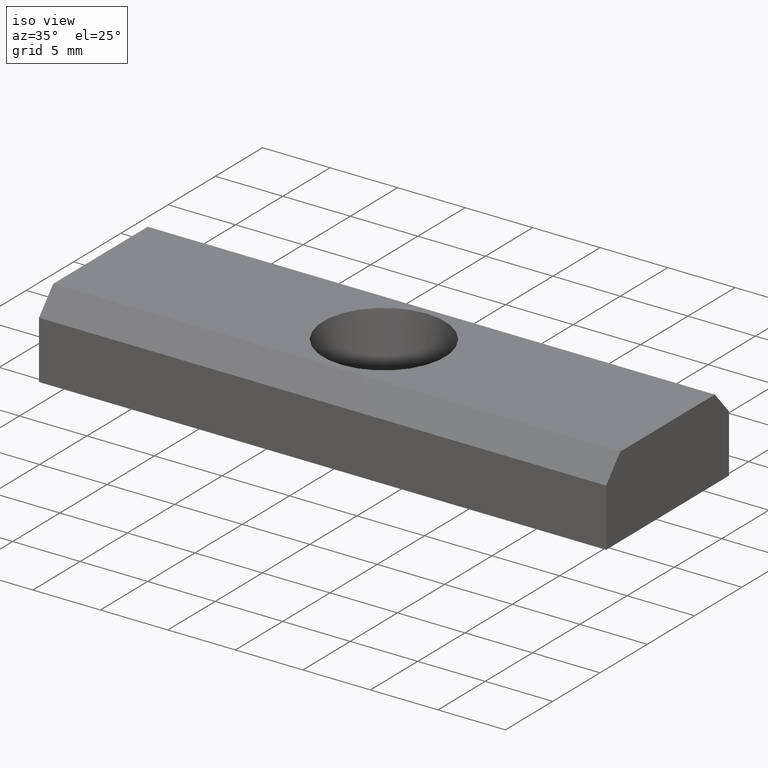
[diagram: clean part render]
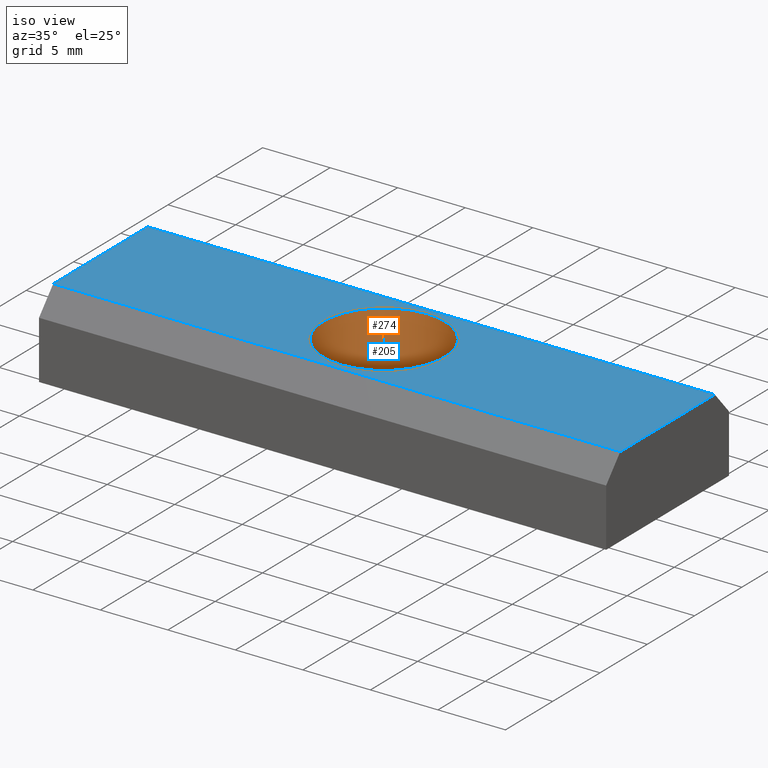
[diagram: same view with the hole feature highlighted: cylindrical wall and planar end face, labeled with their STEP entity ids]
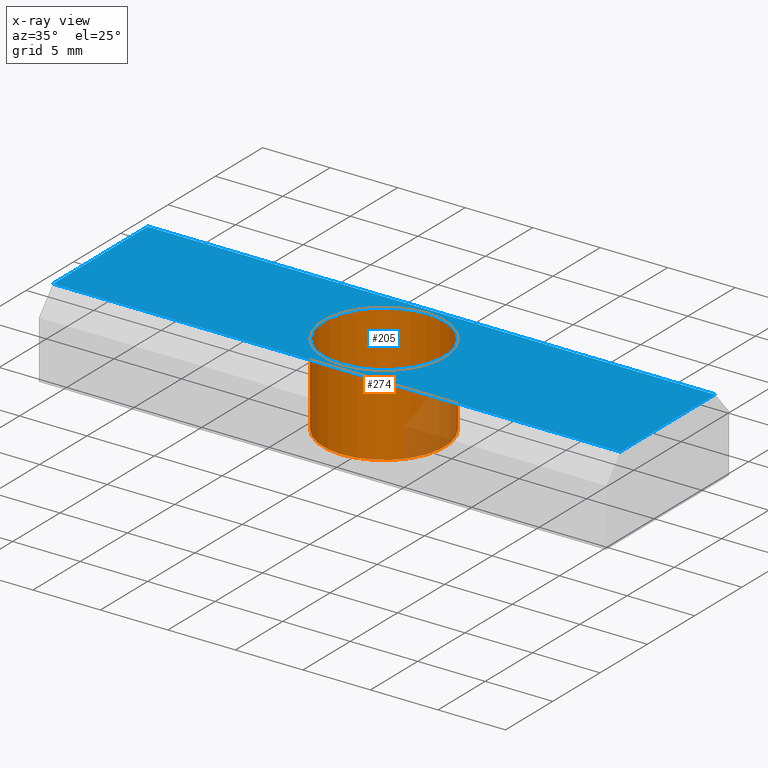
[diagram: x-ray of the same camera — body ghosted, the hole faces saturated]
A machine part, iso view. The highlighted faces form one hole feature of diameter 9 mm: the cylindrical wall (entity #274, orange) and its adjacent planar end face (entity #205, blue) — they share a circular edge in the B-rep.
The next image is the same camera in x-ray (body ghosted, the hole faces saturated) — the bore reads through the body.
Wall:
#72=CARTESIAN_POINT('',(0.0,-4.500000000000000,-8.881784E-016));
#73=VERTEX_POINT('',#72);
#74=CARTESIAN_POINT('',(0.0,4.500000000000000,0.0));
#75=VERTEX_POINT('',#74);
#76=CARTESIAN_POINT('',(0.0,0.0,0.0));
#77=DIRECTION('',(-6.123234E-017,0.0,1.0));
#78=DIRECTION('',(0.0,-1.0,0.0));
#79=AXIS2_PLACEMENT_3D('',#76,#77,#78);
#80=CIRCLE('',#79,4.500000000000000);
#81=EDGE_CURVE('',#73,#75,#80,.T.);
#83=CARTESIAN_POINT('',(0.0,0.0,0.0));
#84=DIRECTION('',(-6.123234E-017,0.0,1.0));
#85=DIRECTION('',(0.0,-1.0,0.0));
#86=AXIS2_PLACEMENT_3D('',#83,#84,#85);
#87=CIRCLE('',#86,4.500000000000000);
#88=EDGE_CURVE('',#75,#73,#87,.T.);
#185=CARTESIAN_POINT('',(0.0,4.500000000000000,5.999999999975898));
#186=VERTEX_POINT('',#185);
#187=CARTESIAN_POINT('',(0.0,-4.500000000000000,5.999999999975898));
#188=VERTEX_POINT('',#187);
#189=CARTESIAN_POINT('',(0.0,0.0,5.999999999975898));
#190=DIRECTION('',(-6.123234E-017,0.0,1.0));
#191=DIRECTION('',(0.0,-1.0,0.0));
#192=AXIS2_PLACEMENT_3D('',#189,#190,#191);
#193=CIRCLE('',#192,4.500000000000000);
#194=EDGE_CURVE('',#186,#188,#193,.T.);
#196=CARTESIAN_POINT('',(0.0,0.0,5.999999999975898));
#197=DIRECTION('',(-6.123234E-017,0.0,1.0));
#198=DIRECTION('',(0.0,-1.0,0.0));
#199=AXIS2_PLACEMENT_3D('',#196,#197,#198);
#200=CIRCLE('',#199,4.500000000000000);
#201=EDGE_CURVE('',#188,#186,#200,.T.);
#256=CARTESIAN_POINT('',(0.0,0.0,5.999999999975898));
#257=DIRECTION('',(-6.123234E-017,0.0,1.0));
#258=DIRECTION('',(0.0,-1.0,0.0));
#259=AXIS2_PLACEMENT_3D('',#256,#257,#258);
#260=CYLINDRICAL_SURFACE('',#259,4.500000000000000);
#261=CARTESIAN_POINT('',(0.0,-4.500000000000000,5.999999999975898));
#262=DIRECTION('',(0.0,0.0,-1.0));
#263=VECTOR('',#262,5.999999999975898);
#264=LINE('',#261,#263);
#265=EDGE_CURVE('',#188,#73,#264,.T.);
#266=ORIENTED_EDGE('',*,*,#265,.T.);
#267=ORIENTED_EDGE('',*,*,#88,.F.);
#268=ORIENTED_EDGE('',*,*,#81,.F.);
#269=ORIENTED_EDGE('',*,*,#265,.F.);
#270=ORIENTED_EDGE('',*,*,#201,.T.);
#271=ORIENTED_EDGE('',*,*,#194,.T.);
#272=EDGE_LOOP('',(#266,#267,#268,#269,#270,#271));
#273=FACE_OUTER_BOUND('',#272,.T.);
#274=ADVANCED_FACE('',(#273),#260,.F.);
End face:
#129=CARTESIAN_POINT('',(-21.000000000084128,4.999999999979991,5.999999999975897));
#130=VERTEX_POINT('',#129);
#137=CARTESIAN_POINT('',(20.999999999915872,4.999999999979991,5.999999999975897));
#138=VERTEX_POINT('',#137);
#139=CARTESIAN_POINT('',(-21.000000000084128,4.999999999979991,5.999999999975897));
#140=DIRECTION('',(1.0,0.0,0.0));
#141=VECTOR('',#140,42.0);
#142=LINE('',#139,#141);
#143=EDGE_CURVE('',#130,#138,#142,.T.);
#155=CARTESIAN_POINT('',(-21.000000000084128,4.999999999979991,5.999999999975897));
#156=DIRECTION('',(0.0,0.0,1.0));
#157=DIRECTION('',(0.0,-1.0,0.0));
#158=AXIS2_PLACEMENT_3D('',#155,#156,#157);
#159=PLANE('',#158);
#160=CARTESIAN_POINT('',(-21.000000000084128,-4.999999999979991,5.999999999975442));
#161=VERTEX_POINT('',#160);
#162=CARTESIAN_POINT('',(-21.000000000084128,4.999999999980011,5.999999999975897));
#163=DIRECTION('',(0.0,-1.0,0.0));
#164=VECTOR('',#163,9.999999999960002);
#165=LINE('',#162,#164);
#166=EDGE_CURVE('',#130,#161,#165,.T.);
#167=ORIENTED_EDGE('',*,*,#166,.T.);
#168=CARTESIAN_POINT('',(20.999999999915872,-4.999999999979991,5.999999999975442));
#169=VERTEX_POINT('',#168);
#170=CARTESIAN_POINT('',(-21.000000000084128,-4.999999999979991,5.999999999975442));
#171=DIRECTION('',(1.0,0.0,0.0));
#172=VECTOR('',#171,42.0);
#173=LINE('',#170,#172);
#174=EDGE_CURVE('',#161,#169,#173,.T.);
#175=ORIENTED_EDGE('',*,*,#174,.T.);
#176=CARTESIAN_POINT('',(20.999999999915872,4.999999999980011,5.999999999975897));
#177=DIRECTION('',(0.0,-1.0,0.0));
#178=VECTOR('',#177,9.999999999960002);
#179=LINE('',#176,#178);
#180=EDGE_CURVE('',#138,#169,#179,.T.);
#181=ORIENTED_EDGE('',*,*,#180,.F.);
#182=ORIENTED_EDGE('',*,*,#143,.F.);
#183=EDGE_LOOP('',(#167,#175,#181,#182));
#184=FACE_OUTER_BOUND('',#183,.T.);
#185=CARTESIAN_POINT('',(0.0,4.500000000000000,5.999999999975898));
#186=VERTEX_POINT('',#185);
#187=CARTESIAN_POINT('',(0.0,-4.500000000000000,5.999999999975898));
#188=VERTEX_POINT('',#187);
#189=CARTESIAN_POINT('',(0.0,0.0,5.999999999975898));
#190=DIRECTION('',(-6.123234E-017,0.0,1.0));
#191=DIRECTION('',(0.0,-1.0,0.0));
#192=AXIS2_PLACEMENT_3D('',#189,#190,#191);
#193=CIRCLE('',#192,4.500000000000000);
#194=EDGE_CURVE('',#186,#188,#193,.T.);
#195=ORIENTED_EDGE('',*,*,#194,.F.);
#196=CARTESIAN_POINT('',(0.0,0.0,5.999999999975898));
#197=DIRECTION('',(-6.123234E-017,0.0,1.0));
#198=DIRECTION('',(0.0,-1.0,0.0));
#199=AXIS2_PLACEMENT_3D('',#196,#197,#198);
#200=CIRCLE('',#199,4.500000000000000);
#201=EDGE_CURVE('',#188,#186,#200,.T.);
#202=ORIENTED_EDGE('',*,*,#201,.F.);
#203=EDGE_LOOP('',(#195,#202));
#204=FACE_BOUND('',#203,.T.);
#205=ADVANCED_FACE('',(#184,#204),#159,.T.);